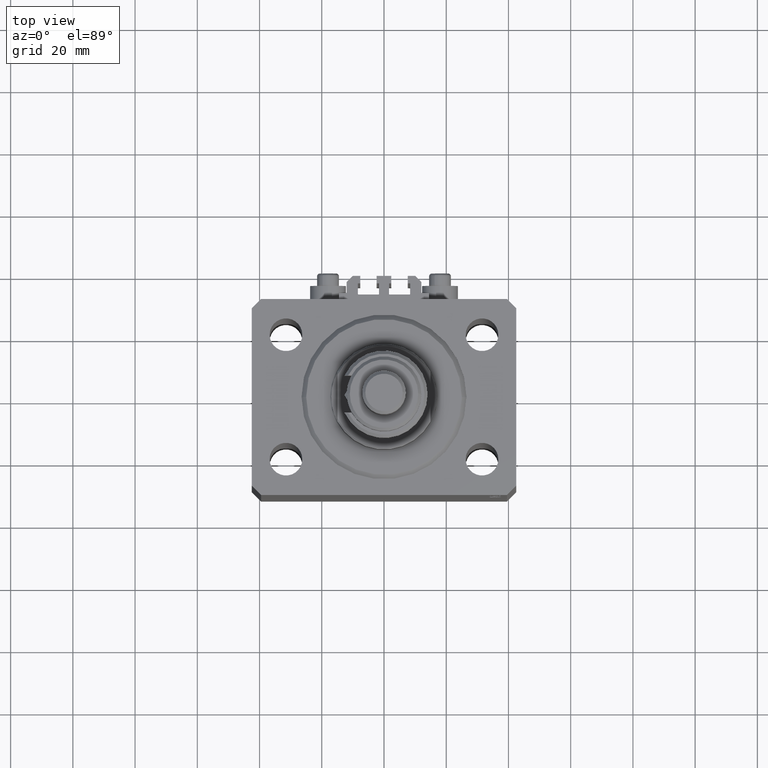
[diagram: clean part render]
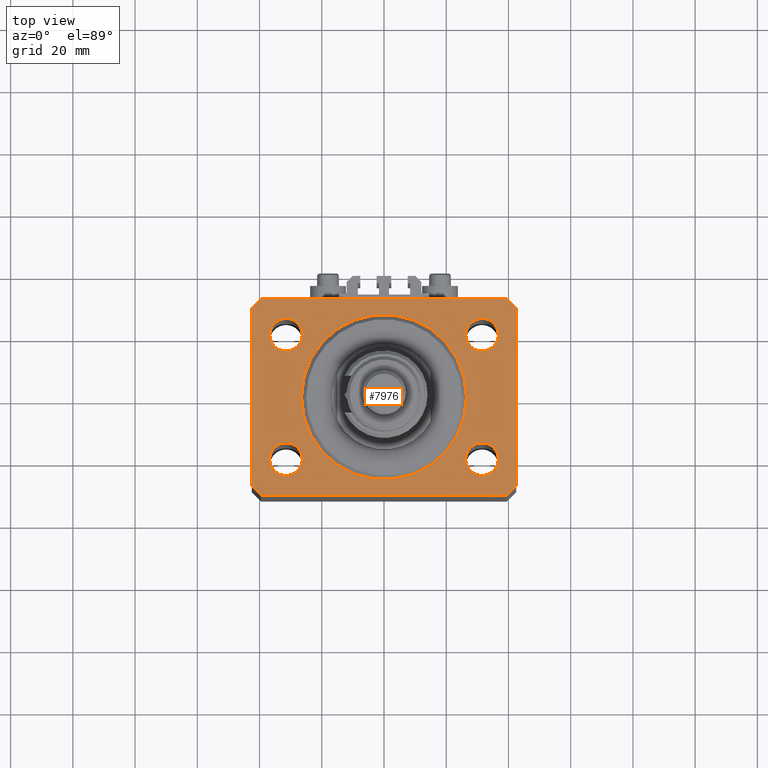
[diagram: same view with one face highlighted and labeled with its STEP entity id]
A machine part, top view. The second image highlights one B-rep face of the part: STEP entity #7976.
In plain terms, the highlighted planar face has unit normal (0, 0, 1).
Its self-contained STEP definition (entity closure, byte-faithful):
#960 = VECTOR ( 'NONE', #7712, 1000.000000000000000 ) ;
#1292 = ORIENTED_EDGE ( 'NONE', *, *, #15784, .T. ) ;
#1430 = EDGE_CURVE ( 'NONE', #7436, #6209, #42470, .T. ) ;
#2048 = LINE ( 'NONE', #36284, #23580 ) ;
#2246 = LINE ( 'NONE', #29133, #25192 ) ;
#2459 = ORIENTED_EDGE ( 'NONE', *, *, #8316, .F. ) ;
#2517 = CARTESIAN_POINT ( 'NONE',  ( 42.50000000000051870, 28.49999999999995381, 0.000000000000000000 ) ) ;
#2799 = ORIENTED_EDGE ( 'NONE', *, *, #11788, .T. ) ;
#2979 = VERTEX_POINT ( 'NONE', #27146 ) ;
#3702 = EDGE_LOOP ( 'NONE', ( #5850, #22718 ) ) ;
#4331 = CARTESIAN_POINT ( 'NONE',  ( 36.75000000000000000, 19.99999999999999289, 0.000000000000000000 ) ) ;
#4348 = ORIENTED_EDGE ( 'NONE', *, *, #5929, .F. ) ;
#4667 = AXIS2_PLACEMENT_3D ( 'NONE', #17430, #29363, #10326 ) ;
#4846 = FACE_BOUND ( 'NONE', #44699, .T. ) ;
#5348 = CARTESIAN_POINT ( 'NONE',  ( -31.49999999999999289, -20.00000000000000355, 0.000000000000000000 ) ) ;
#5460 = VERTEX_POINT ( 'NONE', #4331 ) ;
#5850 = ORIENTED_EDGE ( 'NONE', *, *, #35746, .F. ) ;
#5929 = EDGE_CURVE ( 'NONE', #44373, #29491, #31322, .T. ) ;
#6209 = VERTEX_POINT ( 'NONE', #48008 ) ;
#6562 = DIRECTION ( 'NONE',  ( -0.7071067811865471286, -0.7071067811865479058, 0.000000000000000000 ) ) ;
#6626 = VECTOR ( 'NONE', #21123, 1000.000000000000114 ) ;
#7436 = VERTEX_POINT ( 'NONE', #31421 ) ;
#7712 = DIRECTION ( 'NONE',  ( 0.7071067811865471286, -0.7071067811865479058, 0.000000000000000000 ) ) ;
#7824 = DIRECTION ( 'NONE',  ( 1.000000000000000000, 0.000000000000000000, 0.000000000000000000 ) ) ;
#7976 = ADVANCED_FACE ( 'NONE', ( #43894, #13166, #4846, #27915, #43639, #36521 ), #47459, .T. ) ;
#8063 = DIRECTION ( 'NONE',  ( 0.000000000000000000, 0.000000000000000000, 1.000000000000000000 ) ) ;
#8316 = EDGE_CURVE ( 'NONE', #2979, #33075, #24105, .T. ) ;
#8686 = AXIS2_PLACEMENT_3D ( 'NONE', #5348, #17006, #32484 ) ;
#8767 = DIRECTION ( 'NONE',  ( 1.000000000000000000, 0.000000000000000000, 0.000000000000000000 ) ) ;
#8818 = CARTESIAN_POINT ( 'NONE',  ( -36.75000000000000000, 19.99999999999999645, 0.000000000000000000 ) ) ;
#9815 = CARTESIAN_POINT ( 'NONE',  ( -36.74999999999999289, -20.00000000000000355, 0.000000000000000000 ) ) ;
#10025 = CARTESIAN_POINT ( 'NONE',  ( -39.50000000000000711, 31.50000000000000000, 0.000000000000000000 ) ) ;
#10326 = DIRECTION ( 'NONE',  ( 1.000000000000000000, 0.000000000000000000, 0.000000000000000000 ) ) ;
#11274 = EDGE_CURVE ( 'NONE', #16143, #5460, #46897, .T. ) ;
#11431 = DIRECTION ( 'NONE',  ( 0.000000000000000000, 0.000000000000000000, 1.000000000000000000 ) ) ;
#11741 = CARTESIAN_POINT ( 'NONE',  ( -42.50000000000000000, 28.50000000000000000, 0.000000000000000000 ) ) ;
#11788 = EDGE_CURVE ( 'NONE', #12922, #7436, #45006, .T. ) ;
#11875 = LINE ( 'NONE', #46409, #22537 ) ;
#12249 = CARTESIAN_POINT ( 'NONE',  ( 39.50000000000056843, 31.50000000000000000, 0.000000000000000000 ) ) ;
#12913 = VECTOR ( 'NONE', #47080, 1000.000000000000000 ) ;
#12922 = VERTEX_POINT ( 'NONE', #11741 ) ;
#13166 = FACE_BOUND ( 'NONE', #32412, .T. ) ;
#13540 = DIRECTION ( 'NONE',  ( 0.000000000000000000, 0.000000000000000000, 1.000000000000000000 ) ) ;
#13592 = CARTESIAN_POINT ( 'NONE',  ( -39.50000000000000711, -31.50000000000000000, 0.000000000000000000 ) ) ;
#14297 = EDGE_CURVE ( 'NONE', #46644, #15282, #19483, .T. ) ;
#14611 = DIRECTION ( 'NONE',  ( 1.000000000000000000, 0.000000000000000000, 0.000000000000000000 ) ) ;
#15155 = DIRECTION ( 'NONE',  ( 1.000000000000000000, 0.000000000000000000, 0.000000000000000000 ) ) ;
#15282 = VERTEX_POINT ( 'NONE', #38365 ) ;
#15446 = EDGE_CURVE ( 'NONE', #47330, #22538, #2048, .T. ) ;
#15669 = DIRECTION ( 'NONE',  ( 0.000000000000000000, 0.000000000000000000, 1.000000000000000000 ) ) ;
#15784 = EDGE_CURVE ( 'NONE', #22538, #12922, #2246, .T. ) ;
#16143 = VERTEX_POINT ( 'NONE', #38758 ) ;
#16228 = CARTESIAN_POINT ( 'NONE',  ( 31.49999999999999289, -20.00000000000000355, 0.000000000000000000 ) ) ;
#16588 = ORIENTED_EDGE ( 'NONE', *, *, #49220, .T. ) ;
#17006 = DIRECTION ( 'NONE',  ( 0.000000000000000000, 0.000000000000000000, 1.000000000000000000 ) ) ;
#17067 = LINE ( 'NONE', #48524, #6626 ) ;
#17286 = EDGE_CURVE ( 'NONE', #35140, #19735, #39448, .T. ) ;
#17430 = CARTESIAN_POINT ( 'NONE',  ( 0.000000000000000000, 0.000000000000000000, 0.000000000000000000 ) ) ;
#17826 = EDGE_CURVE ( 'NONE', #20899, #38284, #19478, .T. ) ;
#17845 = CARTESIAN_POINT ( 'NONE',  ( -42.50000000000000000, 28.50000000000000000, 0.000000000000000000 ) ) ;
#19179 = CARTESIAN_POINT ( 'NONE',  ( 26.24999999999999645, -20.00000000000000355, 0.000000000000000000 ) ) ;
#19478 = CIRCLE ( 'NONE', #20296, 5.250000000000000888 ) ;
#19483 = CIRCLE ( 'NONE', #30012, 5.250000000000000888 ) ;
#19735 = VERTEX_POINT ( 'NONE', #2517 ) ;
#19967 = CIRCLE ( 'NONE', #49165, 5.250000000000000888 ) ;
#20072 = EDGE_CURVE ( 'NONE', #6209, #44792, #44830, .T. ) ;
#20296 = AXIS2_PLACEMENT_3D ( 'NONE', #46650, #15669, #7824 ) ;
#20312 = CARTESIAN_POINT ( 'NONE',  ( 0.000000000000000000, 0.000000000000000000, 0.000000000000000000 ) ) ;
#20899 = VERTEX_POINT ( 'NONE', #8818 ) ;
#20948 = AXIS2_PLACEMENT_3D ( 'NONE', #34454, #8063, #15155 ) ;
#21123 = DIRECTION ( 'NONE',  ( -0.7071067811865356934, 0.7071067811865594521, 0.000000000000000000 ) ) ;
#21215 = ORIENTED_EDGE ( 'NONE', *, *, #15446, .T. ) ;
#21292 = ORIENTED_EDGE ( 'NONE', *, *, #26185, .F. ) ;
#21352 = CARTESIAN_POINT ( 'NONE',  ( 42.50000000000000711, -28.50000000000000355, 0.000000000000000000 ) ) ;
#22238 = ORIENTED_EDGE ( 'NONE', *, *, #39061, .T. ) ;
#22537 = VECTOR ( 'NONE', #40266, 1000.000000000000000 ) ;
#22538 = VERTEX_POINT ( 'NONE', #10025 ) ;
#22642 = ORIENTED_EDGE ( 'NONE', *, *, #20072, .T. ) ;
#22718 = ORIENTED_EDGE ( 'NONE', *, *, #17826, .F. ) ;
#23546 = CARTESIAN_POINT ( 'NONE',  ( 26.50000000000000355, 0.000000000000000000, 0.000000000000000000 ) ) ;
#23580 = VECTOR ( 'NONE', #47972, 1000.000000000000000 ) ;
#23865 = CARTESIAN_POINT ( 'NONE',  ( -31.50000000000000000, 19.99999999999999645, 0.000000000000000000 ) ) ;
#24105 = CIRCLE ( 'NONE', #4667, 26.50000000000000355 ) ;
#24952 = ORIENTED_EDGE ( 'NONE', *, *, #37853, .F. ) ;
#25192 = VECTOR ( 'NONE', #6562, 1000.000000000000000 ) ;
#25239 = CARTESIAN_POINT ( 'NONE',  ( 31.49999999999999289, -20.00000000000000355, 0.000000000000000000 ) ) ;
#26185 = EDGE_CURVE ( 'NONE', #29491, #44373, #41669, .T. ) ;
#26207 = EDGE_CURVE ( 'NONE', #5460, #16143, #46567, .T. ) ;
#26550 = DIRECTION ( 'NONE',  ( 0.000000000000000000, 0.000000000000000000, 1.000000000000000000 ) ) ;
#27146 = CARTESIAN_POINT ( 'NONE',  ( -26.50000000000000355, 3.245314017740486554E-15, 0.000000000000000000 ) ) ;
#27230 = CARTESIAN_POINT ( 'NONE',  ( -26.25000000000000000, 19.99999999999999645, 0.000000000000000000 ) ) ;
#27417 = CIRCLE ( 'NONE', #33905, 26.50000000000000355 ) ;
#27563 = CARTESIAN_POINT ( 'NONE',  ( 0.000000000000000000, 0.000000000000000000, 0.000000000000000000 ) ) ;
#27915 = FACE_BOUND ( 'NONE', #37531, .T. ) ;
#29090 = DIRECTION ( 'NONE',  ( 1.000000000000000000, 0.000000000000000000, 0.000000000000000000 ) ) ;
#29133 = CARTESIAN_POINT ( 'NONE',  ( -39.50000000000000711, 31.50000000000000000, 0.000000000000000000 ) ) ;
#29363 = DIRECTION ( 'NONE',  ( 0.000000000000000000, 0.000000000000000000, 1.000000000000000000 ) ) ;
#29491 = VERTEX_POINT ( 'NONE', #19179 ) ;
#29849 = DIRECTION ( 'NONE',  ( 0.000000000000000000, 0.000000000000000000, 1.000000000000000000 ) ) ;
#29999 = DIRECTION ( 'NONE',  ( 0.000000000000000000, 0.000000000000000000, 1.000000000000000000 ) ) ;
#30012 = AXIS2_PLACEMENT_3D ( 'NONE', #48780, #29999, #30247 ) ;
#30247 = DIRECTION ( 'NONE',  ( 1.000000000000000000, 0.000000000000000000, 0.000000000000000000 ) ) ;
#30575 = CIRCLE ( 'NONE', #8686, 5.250000000000000888 ) ;
#30975 = DIRECTION ( 'NONE',  ( 1.000000000000000000, 0.000000000000000000, 0.000000000000000000 ) ) ;
#31167 = AXIS2_PLACEMENT_3D ( 'NONE', #45081, #29849, #14611 ) ;
#31322 = CIRCLE ( 'NONE', #43481, 5.249999999999997335 ) ;
#31421 = CARTESIAN_POINT ( 'NONE',  ( -42.50000000000000000, -28.50000000000000000, 0.000000000000000000 ) ) ;
#31597 = CARTESIAN_POINT ( 'NONE',  ( 42.50000000000000711, -28.50000000000000355, 0.000000000000000000 ) ) ;
#32005 = CARTESIAN_POINT ( 'NONE',  ( 39.50000000000000711, -31.50000000000000000, 0.000000000000000000 ) ) ;
#32115 = ORIENTED_EDGE ( 'NONE', *, *, #40070, .F. ) ;
#32412 = EDGE_LOOP ( 'NONE', ( #24952, #45474 ) ) ;
#32484 = DIRECTION ( 'NONE',  ( 1.000000000000000000, 0.000000000000000000, 0.000000000000000000 ) ) ;
#32658 = ORIENTED_EDGE ( 'NONE', *, *, #17286, .T. ) ;
#32745 = AXIS2_PLACEMENT_3D ( 'NONE', #16228, #26550, #38214 ) ;
#33075 = VERTEX_POINT ( 'NONE', #23546 ) ;
#33905 = AXIS2_PLACEMENT_3D ( 'NONE', #27563, #43037, #8767 ) ;
#34454 = CARTESIAN_POINT ( 'NONE',  ( 31.50000000000000000, 19.99999999999999289, 0.000000000000000000 ) ) ;
#35140 = VERTEX_POINT ( 'NONE', #21352 ) ;
#35519 = ORIENTED_EDGE ( 'NONE', *, *, #26207, .F. ) ;
#35746 = EDGE_CURVE ( 'NONE', #38284, #20899, #19967, .T. ) ;
#36265 = DIRECTION ( 'NONE',  ( 0.000000000000000000, 0.000000000000000000, 1.000000000000000000 ) ) ;
#36284 = CARTESIAN_POINT ( 'NONE',  ( 39.50000000000056843, 31.50000000000000000, 0.000000000000000000 ) ) ;
#36521 = FACE_OUTER_BOUND ( 'NONE', #36667, .T. ) ;
#36667 = EDGE_LOOP ( 'NONE', ( #21215, #1292, #2799, #38201, #22642, #22238, #32658, #16588 ) ) ;
#36873 = DIRECTION ( 'NONE',  ( 0.000000000000000000, -1.000000000000000000, 0.000000000000000000 ) ) ;
#37531 = EDGE_LOOP ( 'NONE', ( #35519, #47150 ) ) ;
#37853 = EDGE_CURVE ( 'NONE', #15282, #46644, #30575, .T. ) ;
#38201 = ORIENTED_EDGE ( 'NONE', *, *, #1430, .T. ) ;
#38214 = DIRECTION ( 'NONE',  ( 1.000000000000000000, 0.000000000000000000, 0.000000000000000000 ) ) ;
#38284 = VERTEX_POINT ( 'NONE', #27230 ) ;
#38365 = CARTESIAN_POINT ( 'NONE',  ( -26.24999999999999289, -20.00000000000000355, 0.000000000000000000 ) ) ;
#38758 = CARTESIAN_POINT ( 'NONE',  ( 26.25000000000000355, 19.99999999999999289, 0.000000000000000000 ) ) ;
#38914 = VECTOR ( 'NONE', #29090, 1000.000000000000000 ) ;
#39061 = EDGE_CURVE ( 'NONE', #44792, #35140, #11875, .T. ) ;
#39448 = LINE ( 'NONE', #31597, #12913 ) ;
#40070 = EDGE_CURVE ( 'NONE', #33075, #2979, #27417, .T. ) ;
#40082 = DIRECTION ( 'NONE',  ( 1.000000000000000000, 0.000000000000000000, -0.000000000000000000 ) ) ;
#40266 = DIRECTION ( 'NONE',  ( 0.7071067811865483499, 0.7071067811865466846, 0.000000000000000000 ) ) ;
#41558 = CARTESIAN_POINT ( 'NONE',  ( 36.74999999999999289, -20.00000000000000355, 0.000000000000000000 ) ) ;
#41669 = CIRCLE ( 'NONE', #32745, 5.249999999999997335 ) ;
#42470 = LINE ( 'NONE', #45531, #960 ) ;
#43037 = DIRECTION ( 'NONE',  ( 0.000000000000000000, 0.000000000000000000, 1.000000000000000000 ) ) ;
#43481 = AXIS2_PLACEMENT_3D ( 'NONE', #25239, #13540, #44264 ) ;
#43639 = FACE_BOUND ( 'NONE', #3702, .T. ) ;
#43894 = FACE_BOUND ( 'NONE', #49752, .T. ) ;
#44264 = DIRECTION ( 'NONE',  ( 1.000000000000000000, 0.000000000000000000, 0.000000000000000000 ) ) ;
#44373 = VERTEX_POINT ( 'NONE', #41558 ) ;
#44699 = EDGE_LOOP ( 'NONE', ( #4348, #21292 ) ) ;
#44792 = VERTEX_POINT ( 'NONE', #32005 ) ;
#44830 = LINE ( 'NONE', #13592, #38914 ) ;
#45006 = LINE ( 'NONE', #17845, #46141 ) ;
#45081 = CARTESIAN_POINT ( 'NONE',  ( 31.50000000000000000, 19.99999999999999289, 0.000000000000000000 ) ) ;
#45159 = AXIS2_PLACEMENT_3D ( 'NONE', #20312, #36265, #40082 ) ;
#45474 = ORIENTED_EDGE ( 'NONE', *, *, #14297, .F. ) ;
#45531 = CARTESIAN_POINT ( 'NONE',  ( -42.50000000000000000, -28.50000000000000000, 0.000000000000000000 ) ) ;
#46141 = VECTOR ( 'NONE', #36873, 1000.000000000000000 ) ;
#46409 = CARTESIAN_POINT ( 'NONE',  ( 39.50000000000000711, -31.50000000000000000, 0.000000000000000000 ) ) ;
#46567 = CIRCLE ( 'NONE', #31167, 5.249999999999997335 ) ;
#46644 = VERTEX_POINT ( 'NONE', #9815 ) ;
#46650 = CARTESIAN_POINT ( 'NONE',  ( -31.50000000000000000, 19.99999999999999645, 0.000000000000000000 ) ) ;
#46897 = CIRCLE ( 'NONE', #20948, 5.249999999999997335 ) ;
#47080 = DIRECTION ( 'NONE',  ( 8.886653596232072440E-15, 1.000000000000000000, 0.000000000000000000 ) ) ;
#47150 = ORIENTED_EDGE ( 'NONE', *, *, #11274, .F. ) ;
#47330 = VERTEX_POINT ( 'NONE', #12249 ) ;
#47459 = PLANE ( 'NONE',  #45159 ) ;
#47972 = DIRECTION ( 'NONE',  ( -1.000000000000000000, 0.000000000000000000, 0.000000000000000000 ) ) ;
#48008 = CARTESIAN_POINT ( 'NONE',  ( -39.50000000000000711, -31.50000000000000000, 0.000000000000000000 ) ) ;
#48524 = CARTESIAN_POINT ( 'NONE',  ( 42.50000000000051870, 28.49999999999995381, 0.000000000000000000 ) ) ;
#48780 = CARTESIAN_POINT ( 'NONE',  ( -31.49999999999999289, -20.00000000000000355, 0.000000000000000000 ) ) ;
#49165 = AXIS2_PLACEMENT_3D ( 'NONE', #23865, #11431, #30975 ) ;
#49220 = EDGE_CURVE ( 'NONE', #19735, #47330, #17067, .T. ) ;
#49752 = EDGE_LOOP ( 'NONE', ( #32115, #2459 ) ) ;